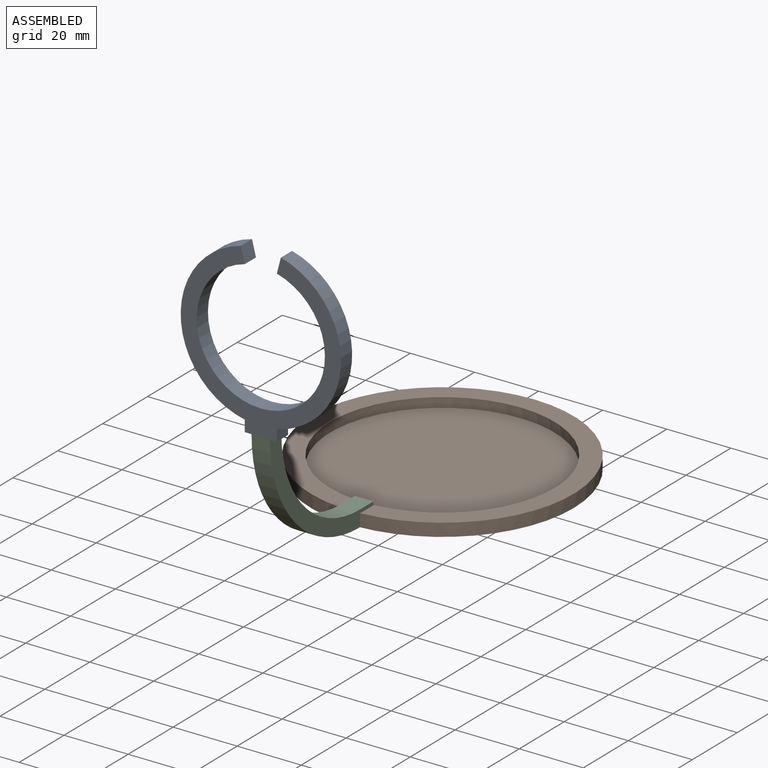
[diagram: assembled view]
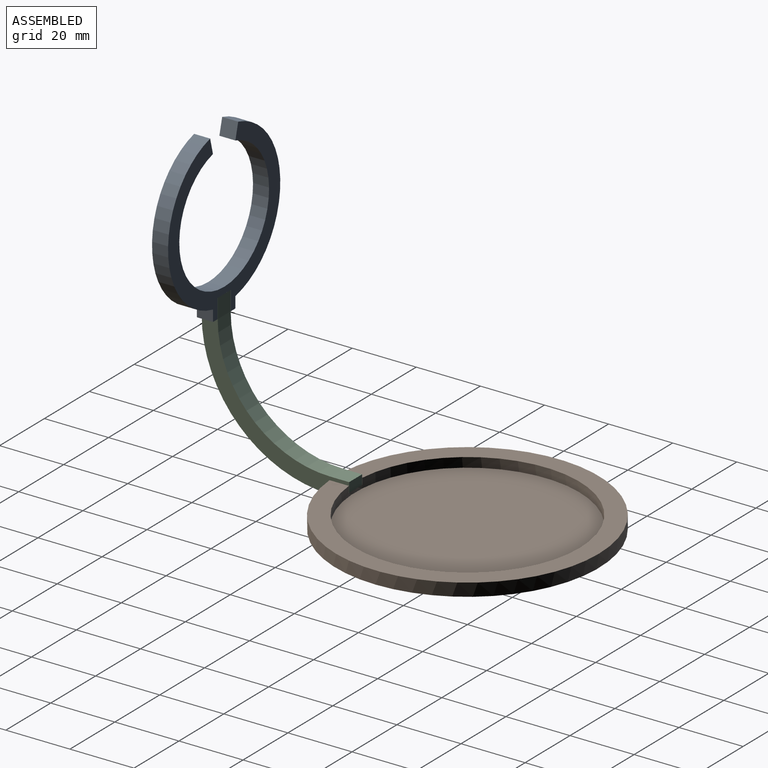
[diagram: assembled view, second angle]
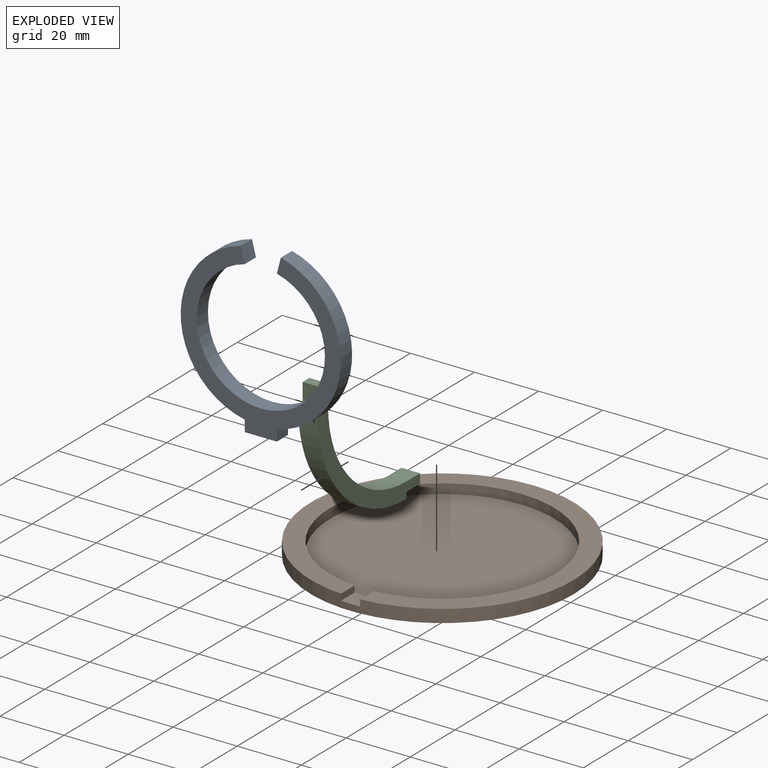
[diagram: exploded view]
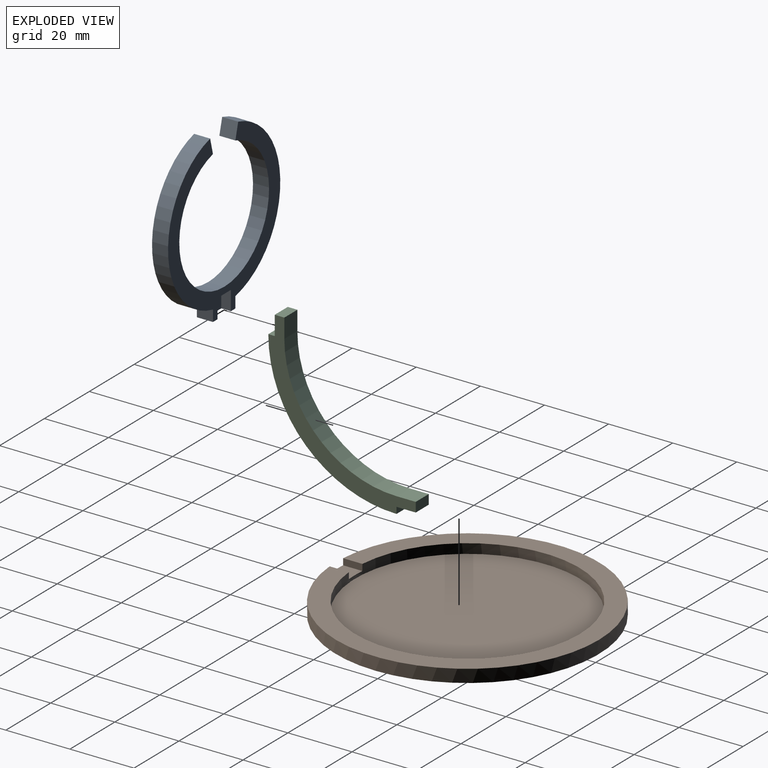
[diagram: exploded view, second angle]
ASSEMBLY  parts=3 mates=2
PART A: 14 faces, bbox 50x52.2x5 mm
  f0: plane 10x5mm, normal (0,-1,0), area 32mm2, adj f1,f7,f8,f9,f11,f12,f13
  f1: plane 5x3.51mm, normal (1,0,0), area 17.5mm2, adj f0,f2,f8,f9
  f2: cylinder r=25mm len=48.7mm, axis (0,0,-1), area 335.9mm2, adj f1,f3,f8,f9
  f3: plane 5x4.84mm, normal (-0.97,0.25,0), area 25mm2, adj f2,f4,f8,f9
  f4: cylinder r=20mm len=40mm, axis (0,0,-1), area 577.8mm2, adj f3,f5,f8,f9
  f5: plane 5x4.84mm, normal (0.97,0.25,0), area 25mm2, adj f4,f6,f8,f9
  f6: cylinder r=25mm len=48.7mm, axis (0,0,-1), area 335.9mm2, adj f5,f7,f8,f9
  f7: plane 5x3.51mm, normal (-1,0,0), area 17.5mm2, adj f0,f6,f8,f9
  f8: plane 52.21x50mm, normal (0,0,1), area 645.7mm2, adj f0,f1,f2,f3,f4,f5,f6,f7
  f9: plane 52.21x50mm, normal (0,0,-1), area 681.7mm2, adj f0,f1,f2,f3,f4,f5,f6,f7
  f10: plane 6x3mm, normal (0,-1,0), area 18mm2, adj f8,f11,f12,f13
  f11: plane 6x3mm, normal (1,0,0), area 18mm2, adj f0,f8,f10,f13
  f12: plane 6x3mm, normal (-1,0,0), area 18mm2, adj f0,f8,f10,f13
  f13: plane 6x6mm, normal (0,0,1), area 36mm2, adj f0,f10,f11,f12
PART B: 8 faces, bbox 82x82x4 mm
  f0: cylinder r=35mm len=70mm, axis (0,0,-1), area 647.7mm2, adj f2,f4,f5,f6,f7
  f1: cylinder r=41mm len=82mm, axis (0,0,-1), area 1018.4mm2, adj f2,f3,f4,f5,f6
  f2: plane 82x81.89mm, normal (0,0,1), area 1396.5mm2, adj f0,f1,f4,f5
  f3: plane 82x82mm, normal (0,0,-1), area 5281mm2, adj f1
  f4: plane 6.02x2mm, normal (-1,0,0), area 12mm2, adj f0,f1,f2,f6
  f5: plane 6.02x2mm, normal (1,0,0), area 12mm2, adj f0,f1,f2,f6
  f6: plane 6.13x6mm, normal (0,0,1), area 36mm2, adj f0,f1,f4,f5
  f7: plane 70x70mm, normal (0,0,1), area 3848.5mm2, adj f0
PART C: 12 faces, bbox 46x46x5.8 mm
  f0: plane 46x46mm, normal (0,0,1), area 330.5mm2, adj f1,f2,f3,f4,f5,f6,f8,f9
  f1: plane 5.8x3mm, normal (0,-1,0), area 17.4mm2, adj f0,f3,f7,f11
  f2: cylinder r=35mm len=35mm, axis (0,0,-1), area 318.9mm2, adj f0,f3,f6,f7
  f3: plane 6x5.8mm, normal (-1,0,0), area 34.8mm2, adj f0,f1,f2,f7
  f4: cylinder r=40mm len=40mm, axis (0,0,-1), area 364.4mm2, adj f0,f7,f8,f10
  f5: plane 5.8x3mm, normal (-1,0,0), area 17.4mm2, adj f0,f6,f7,f9
  f6: plane 6x5.8mm, normal (0,-1,0), area 34.8mm2, adj f0,f2,f5,f7
  f7: plane 46x46mm, normal (0,0,-1), area 330.5mm2, adj f1,f2,f3,f4,f5,f6,f8,f9
  f8: plane 5.8x2mm, normal (-1,0,0), area 11.6mm2, adj f0,f4,f7,f9
  f9: plane 6x5.8mm, normal (0,1,0), area 34.8mm2, adj f0,f5,f7,f8
  f10: plane 5.8x2mm, normal (0,-1,0), area 11.6mm2, adj f0,f4,f7,f11
  f11: plane 6x5.8mm, normal (1,0,0), area 34.8mm2, adj f0,f1,f7,f10
PLACE A rot(axis=(0,0.71,0.71),180deg) t=(0,-80.89,68)mm
PLACE B at identity fixed
PLACE C rot(axis=(0.71,0,-0.71),180deg) t=(2.9,-40.89,40)mm
MATE fastened B.f6 <-> C.f11  axis (0,0,1) through (-3,-40.89,2)mm
MATE fastened C.f9 <-> A.f13  axis (0,-1,0) through (2.9,-78.89,46)mm
